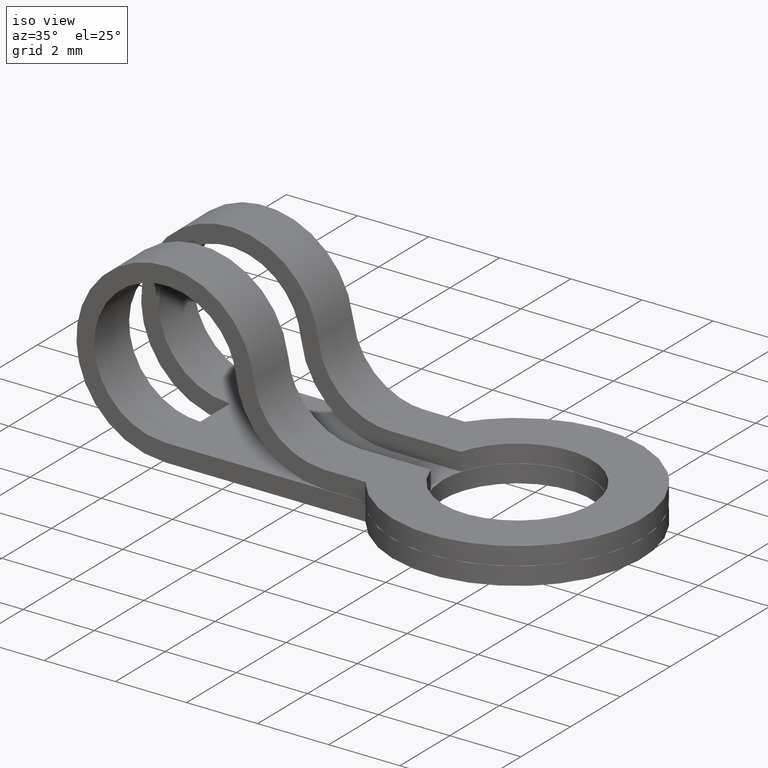
[diagram: clean part render]
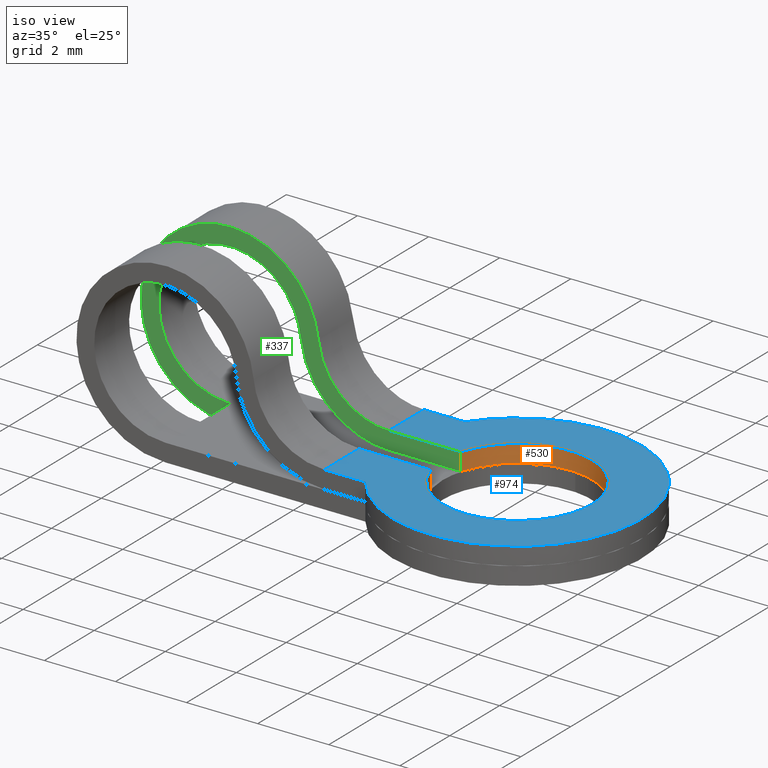
[diagram: same view with three faces highlighted in distinct colors, each labeled with its STEP entity id]
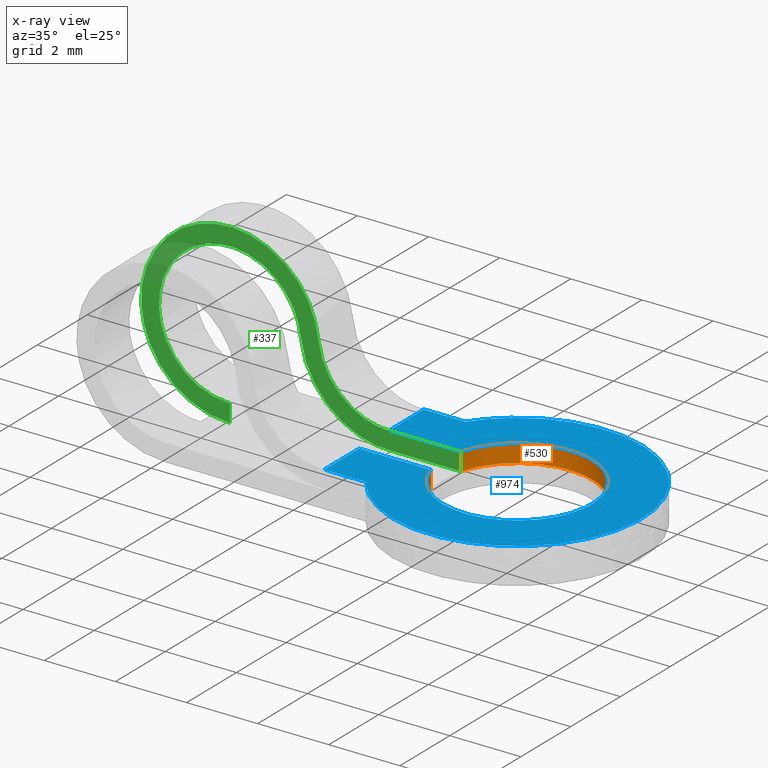
[diagram: x-ray of the same camera — body ghosted, the three highlighted faces saturated]
A machine part, iso view with three faces highlighted in distinct colors.
The next image is the same camera in x-ray (body ghosted, the three faces saturated) — at least one of them is partly hidden behind the body in this view.
Their STEP definitions:

[orange] entity #530 — the highlighted face is a freeform B-spline surface patch.
#282=CARTESIAN_POINT('',(6.887538820250209,0.600000000000045,-1.990000000000045));
#283=VERTEX_POINT('',#282);
#289=CARTESIAN_POINT('',(6.887538820250209,0.600000000000045,-1.490000000000000));
#290=VERTEX_POINT('',#289);
#291=CARTESIAN_POINT('',(6.887538820250209,0.600000000000045,-1.990000000000045));
#292=CARTESIAN_POINT('',(6.887538820250209,0.600000000000045,-1.490000000000000));
#293=QUASI_UNIFORM_CURVE('',1,(#291,#292),.UNSPECIFIED.,.F.,.U.);
#294=EDGE_CURVE('',#283,#290,#293,.T.);
#406=CARTESIAN_POINT('',(6.887538820250209,-0.600000000000045,-1.490000000000000));
#407=VERTEX_POINT('',#406);
#413=CARTESIAN_POINT('',(6.887538820250209,-0.600000000000045,-1.990000000000045));
#414=VERTEX_POINT('',#413);
#415=CARTESIAN_POINT('',(6.887538820250209,-0.600000000000045,-1.490000000000000));
#416=CARTESIAN_POINT('',(6.887538820250209,-0.600000000000045,-1.990000000000045));
#417=QUASI_UNIFORM_CURVE('',1,(#415,#416),.UNSPECIFIED.,.F.,.U.);
#418=EDGE_CURVE('',#407,#414,#417,.T.);
#462=CARTESIAN_POINT('',(6.870595630112311,-0.539923979353339,-1.477499999999999));
#463=CARTESIAN_POINT('',(6.870595630112311,-0.539923979353339,-2.002812500000046));
#464=CARTESIAN_POINT('',(7.350384024012223,-2.343297603114315,-1.477499999999999));
#465=CARTESIAN_POINT('',(7.350384024012223,-2.343297603114315,-2.002812500000046));
#466=CARTESIAN_POINT('',(9.197650565023221,-2.078798725500222,-1.477499999999999));
#467=CARTESIAN_POINT('',(9.197650565023221,-2.078798725500222,-2.002812500000046));
#468=CARTESIAN_POINT('',(11.044917106034218,-1.814299847886129,-1.477499999999999));
#469=CARTESIAN_POINT('',(11.044917106034218,-1.814299847886129,-2.002812500000046));
#470=CARTESIAN_POINT('',(10.999374515417060,0.051250795285406,-1.477499999999999));
#471=CARTESIAN_POINT('',(10.999374515417060,0.051250795285406,-2.002812500000046));
#472=CARTESIAN_POINT('',(10.953831924799895,1.916801438456940,-1.477499999999999));
#473=CARTESIAN_POINT('',(10.953831924799895,1.916801438456940,-2.002812500000046));
#474=CARTESIAN_POINT('',(9.095859468639640,2.090846495691203,-1.477499999999999));
#475=CARTESIAN_POINT('',(9.095859468639640,2.090846495691203,-2.002812500000046));
#476=CARTESIAN_POINT('',(7.237887012479384,2.264891552925466,-1.477499999999999));
#477=CARTESIAN_POINT('',(7.237887012479384,2.264891552925466,-2.002812500000046));
#478=CARTESIAN_POINT('',(6.846667109005701,0.440254515889363,-1.477499999999999));
#479=CARTESIAN_POINT('',(6.846667109005701,0.440254515889363,-2.002812500000046));
#487=(BOUNDED_SURFACE()B_SPLINE_SURFACE(1,2,((#462,#464,#466,#468,#470,#472,#474,#476,#478),(#463,#465,#467,#469,#471,#473,#475,#477,#479)),.UNSPECIFIED.,.F.,.F.,.U.)B_SPLINE_SURFACE_WITH_KNOTS((2,2),(3,2,2,2,3),(0.0,1.0),(0.0,3.192957877615587,6.385915755231173,9.578873632846760,12.771831510462350),.UNSPECIFIED.)GEOMETRIC_REPRESENTATION_ITEM()RATIONAL_B_SPLINE_SURFACE(((1.0,0.747508326862597,1.0,0.747508326862597,1.0,0.747508326862597,1.0,0.747508326862597,1.0),(1.0,0.747508326862597,1.0,0.747508326862597,1.0,0.747508326862597,1.0,0.747508326862597,1.0)))REPRESENTATION_ITEM('')SURFACE());
#488=ORIENTED_EDGE('',*,*,#294,.F.);
#489=CARTESIAN_POINT('',(6.887538820250203,0.600000000000047,-1.990000000000045));
#490=CARTESIAN_POINT('',(7.406352245028294,2.340153128164829,-1.990000000000045));
#491=CARTESIAN_POINT('',(9.203176122514147,2.078000057444005,-1.990000000000045));
#492=CARTESIAN_POINT('',(11.000000000000002,1.815846986723179,-1.990000000000045));
#493=CARTESIAN_POINT('',(11.0,0.0,-1.990000000000045));
#494=CARTESIAN_POINT('',(11.000000000000002,-1.815846986723179,-1.990000000000045));
#495=CARTESIAN_POINT('',(9.203176122514149,-2.078000057444005,-1.990000000000045));
#496=CARTESIAN_POINT('',(7.406352245028296,-2.340153128164829,-1.990000000000045));
#497=CARTESIAN_POINT('',(6.887538820250203,-0.600000000000048,-1.990000000000045));
#505=(BOUNDED_CURVE()B_SPLINE_CURVE(2,(#489,#490,#491,#492,#493,#494,#495,#496,#497),.UNSPECIFIED.,.F.,.U.)B_SPLINE_CURVE_WITH_KNOTS((3,2,2,2,3),(0.0,0.250000000000000,0.500000000000000,0.750000000000000,1.0),.UNSPECIFIED.)CURVE()GEOMETRIC_REPRESENTATION_ITEM()RATIONAL_B_SPLINE_CURVE((1.0,0.756428972921316,1.0,0.756428972921316,1.0,0.756428972921316,1.0,0.756428972921316,1.0))REPRESENTATION_ITEM(''));
#506=EDGE_CURVE('',#283,#414,#505,.T.);
#507=ORIENTED_EDGE('',*,*,#506,.T.);
#508=ORIENTED_EDGE('',*,*,#418,.F.);
#509=CARTESIAN_POINT('',(6.887538820250203,-0.600000000000047,-1.490000000000000));
#510=CARTESIAN_POINT('',(7.406352245028296,-2.340153128164829,-1.490000000000000));
#511=CARTESIAN_POINT('',(9.203176122514147,-2.078000057444005,-1.490000000000000));
#512=CARTESIAN_POINT('',(11.0,-1.815846986723179,-1.490000000000000));
#513=CARTESIAN_POINT('',(11.0,0.0,-1.490000000000000));
#514=CARTESIAN_POINT('',(11.0,1.815846986723179,-1.490000000000000));
#515=CARTESIAN_POINT('',(9.203176122514149,2.078000057444005,-1.490000000000000));
#516=CARTESIAN_POINT('',(7.406352245028296,2.340153128164831,-1.490000000000000));
#517=CARTESIAN_POINT('',(6.887538820250203,0.600000000000048,-1.490000000000000));
#525=(BOUNDED_CURVE()B_SPLINE_CURVE(2,(#509,#510,#511,#512,#513,#514,#515,#516,#517),.UNSPECIFIED.,.F.,.U.)B_SPLINE_CURVE_WITH_KNOTS((3,2,2,2,3),(0.0,0.250000000000000,0.500000000000000,0.750000000000000,1.0),.UNSPECIFIED.)CURVE()GEOMETRIC_REPRESENTATION_ITEM()RATIONAL_B_SPLINE_CURVE((1.0,0.756428972921316,1.0,0.756428972921316,1.0,0.756428972921316,1.0,0.756428972921316,1.0))REPRESENTATION_ITEM(''));
#526=EDGE_CURVE('',#407,#290,#525,.T.);
#527=ORIENTED_EDGE('',*,*,#526,.T.);
#528=EDGE_LOOP('',(#488,#507,#508,#527));
#529=FACE_OUTER_BOUND('',#528,.T.);
#530=ADVANCED_FACE('',(#529),#487,.F.);

[blue] entity #974 — the highlighted face is a freeform B-spline surface patch.
#289=CARTESIAN_POINT('',(6.887538820250209,0.600000000000045,-1.490000000000000));
#290=VERTEX_POINT('',#289);
#296=CARTESIAN_POINT('',(4.871006598071630,0.600000000000045,-1.490000000000000));
#297=VERTEX_POINT('',#296);
#298=CARTESIAN_POINT('',(4.871006598071630,0.600000000000045,-1.490000000000000));
#299=CARTESIAN_POINT('',(6.887538820250209,0.600000000000045,-1.490000000000000));
#300=QUASI_UNIFORM_CURVE('',1,(#298,#299),.UNSPECIFIED.,.F.,.U.);
#301=EDGE_CURVE('',#297,#290,#300,.T.);
#391=CARTESIAN_POINT('',(4.871006598071630,-0.600000000000045,-1.490000000000000));
#392=VERTEX_POINT('',#391);
#406=CARTESIAN_POINT('',(6.887538820250209,-0.600000000000045,-1.490000000000000));
#407=VERTEX_POINT('',#406);
#408=CARTESIAN_POINT('',(6.887538820250209,-0.600000000000045,-1.490000000000000));
#409=CARTESIAN_POINT('',(4.871006598071630,-0.600000000000045,-1.490000000000000));
#410=QUASI_UNIFORM_CURVE('',1,(#408,#409),.UNSPECIFIED.,.F.,.U.);
#411=EDGE_CURVE('',#407,#392,#410,.T.);
#509=CARTESIAN_POINT('',(6.887538820250203,-0.600000000000047,-1.490000000000000));
#510=CARTESIAN_POINT('',(7.406352245028296,-2.340153128164829,-1.490000000000000));
#511=CARTESIAN_POINT('',(9.203176122514147,-2.078000057444005,-1.490000000000000));
#512=CARTESIAN_POINT('',(11.0,-1.815846986723179,-1.490000000000000));
#513=CARTESIAN_POINT('',(11.0,0.0,-1.490000000000000));
#514=CARTESIAN_POINT('',(11.0,1.815846986723179,-1.490000000000000));
#515=CARTESIAN_POINT('',(9.203176122514149,2.078000057444005,-1.490000000000000));
#516=CARTESIAN_POINT('',(7.406352245028296,2.340153128164831,-1.490000000000000));
#517=CARTESIAN_POINT('',(6.887538820250203,0.600000000000048,-1.490000000000000));
#525=(BOUNDED_CURVE()B_SPLINE_CURVE(2,(#509,#510,#511,#512,#513,#514,#515,#516,#517),.UNSPECIFIED.,.F.,.U.)B_SPLINE_CURVE_WITH_KNOTS((3,2,2,2,3),(0.0,0.250000000000000,0.500000000000000,0.750000000000000,1.0),.UNSPECIFIED.)CURVE()GEOMETRIC_REPRESENTATION_ITEM()RATIONAL_B_SPLINE_CURVE((1.0,0.756428972921316,1.0,0.756428972921316,1.0,0.756428972921316,1.0,0.756428972921316,1.0))REPRESENTATION_ITEM(''));
#526=EDGE_CURVE('',#407,#290,#525,.T.);
#545=CARTESIAN_POINT('',(4.871006598071630,-2.000000000000225,-1.490000000000000));
#546=VERTEX_POINT('',#545);
#547=CARTESIAN_POINT('',(4.871006598071630,-0.600000000000045,-1.490000000000000));
#548=CARTESIAN_POINT('',(4.871006598071630,-2.000000000000225,-1.490000000000000));
#549=QUASI_UNIFORM_CURVE('',1,(#547,#548),.UNSPECIFIED.,.F.,.U.);
#550=EDGE_CURVE('',#392,#546,#549,.T.);
#679=CARTESIAN_POINT('',(6.027718691425030,-2.000000000000225,-1.490000000000000));
#680=VERTEX_POINT('',#679);
#681=CARTESIAN_POINT('',(6.027718691425051,2.000000021102730,-1.490000000000000));
#682=VERTEX_POINT('',#681);
#683=CARTESIAN_POINT('',(6.027718691425030,-2.000000000000225,-1.490000000000000));
#684=CARTESIAN_POINT('',(7.496194352325744,-4.108937617553671,-1.490000000000001));
#685=CARTESIAN_POINT('',(9.948097172984022,-3.339385020626239,-1.490000000000000));
#686=CARTESIAN_POINT('',(12.399999993642302,-2.569832423698805,-1.490000000000001));
#687=CARTESIAN_POINT('',(12.400000000000000,-8.658909E-009,-1.490000000000000));
#688=CARTESIAN_POINT('',(12.400000006357699,2.569832406380988,-1.490000000000001));
#689=CARTESIAN_POINT('',(9.948097189507125,3.339385015440308,-1.490000000000000));
#690=CARTESIAN_POINT('',(7.496194372656553,4.108937624499627,-1.490000000000001));
#691=CARTESIAN_POINT('',(6.027718691425044,2.000000021102734,-1.490000000000000));
#699=(BOUNDED_CURVE()B_SPLINE_CURVE(2,(#683,#684,#685,#686,#687,#688,#689,#690,#691),.UNSPECIFIED.,.F.,.U.)B_SPLINE_CURVE_WITH_KNOTS((3,2,2,2,3),(0.0,0.250000000000000,0.500000000000000,0.750000000000000,1.0),.UNSPECIFIED.)CURVE()GEOMETRIC_REPRESENTATION_ITEM()RATIONAL_B_SPLINE_CURVE((1.0,0.806057174615652,1.0,0.806057174615652,1.0,0.806057174615652,1.0,0.806057174615652,1.0))REPRESENTATION_ITEM(''));
#700=EDGE_CURVE('',#680,#682,#699,.T.);
#798=CARTESIAN_POINT('',(6.027718691425030,-2.000000000000225,-1.490000000000000));
#799=CARTESIAN_POINT('',(4.871006598071630,-2.000000000000225,-1.490000000000000));
#800=QUASI_UNIFORM_CURVE('',1,(#798,#799),.UNSPECIFIED.,.F.,.U.);
#801=EDGE_CURVE('',#680,#546,#800,.T.);
#850=CARTESIAN_POINT('',(4.871006598071630,2.0,-1.490000000000000));
#851=VERTEX_POINT('',#850);
#865=CARTESIAN_POINT('',(4.871006598071630,2.0,-1.490000000000000));
#866=CARTESIAN_POINT('',(6.027718691425051,2.000000021102730,-1.490000000000000));
#867=QUASI_UNIFORM_CURVE('',1,(#865,#866),.UNSPECIFIED.,.F.,.U.);
#868=EDGE_CURVE('',#851,#682,#867,.T.);
#955=CARTESIAN_POINT('',(12.776072852449641,-3.844686095711001,-1.490000000000000));
#956=CARTESIAN_POINT('',(4.494933207106402,-3.844686095711001,-1.490000000000000));
#957=CARTESIAN_POINT('',(12.776072852449641,3.844685990668262,-1.490000000000000));
#958=CARTESIAN_POINT('',(4.494933207106402,3.844685990668262,-1.490000000000000));
#959=B_SPLINE_SURFACE_WITH_KNOTS('',1,1,((#955,#957),(#956,#958)),.UNSPECIFIED.,.F.,.F.,.U.,(2,2),(2,2),(0.0,8.281139645343242),(0.0,7.689372086379263),.UNSPECIFIED.);
#960=CARTESIAN_POINT('',(4.871006598071630,2.0,-1.490000000000000));
#961=CARTESIAN_POINT('',(4.871006598071630,0.600000000000045,-1.490000000000000));
#962=QUASI_UNIFORM_CURVE('',1,(#960,#961),.UNSPECIFIED.,.F.,.U.);
#963=EDGE_CURVE('',#851,#297,#962,.T.);
#964=ORIENTED_EDGE('',*,*,#963,.T.);
#965=ORIENTED_EDGE('',*,*,#301,.T.);
#966=ORIENTED_EDGE('',*,*,#526,.F.);
#967=ORIENTED_EDGE('',*,*,#411,.T.);
#968=ORIENTED_EDGE('',*,*,#550,.T.);
#969=ORIENTED_EDGE('',*,*,#801,.F.);
#970=ORIENTED_EDGE('',*,*,#700,.T.);
#971=ORIENTED_EDGE('',*,*,#868,.F.);
#972=EDGE_LOOP('',(#964,#965,#966,#967,#968,#969,#970,#971));
#973=FACE_OUTER_BOUND('',#972,.T.);
#974=ADVANCED_FACE('',(#973),#959,.F.);

[green] entity #337 — the highlighted face is a freeform B-spline surface patch.
#234=CARTESIAN_POINT('',(-2.547046747597062,0.600000000000009,2.742229161025067));
#235=CARTESIAN_POINT('',(-2.547046747597062,0.600000000000009,-2.749392330600836));
#236=CARTESIAN_POINT('',(7.336377131361049,0.600000000000009,2.742229161025067));
#237=CARTESIAN_POINT('',(7.336377131361049,0.600000000000009,-2.749392330600836));
#238=B_SPLINE_SURFACE_WITH_KNOTS('',1,1,((#234,#236),(#235,#237)),.UNSPECIFIED.,.F.,.F.,.U.,(2,2),(2,2),(0.0,5.491621491625903),(0.0,9.883423878958110),.UNSPECIFIED.);
#239=CARTESIAN_POINT('',(0.400000000000006,0.600000000000045,-2.0));
#240=VERTEX_POINT('',#239);
#241=CARTESIAN_POINT('',(0.400000000000005,0.600000000000045,-2.500000000000000));
#242=VERTEX_POINT('',#241);
#243=CARTESIAN_POINT('',(0.400000000000006,0.600000000000045,-2.0));
#244=CARTESIAN_POINT('',(0.400000000000005,0.600000000000045,-2.500000000000000));
#245=QUASI_UNIFORM_CURVE('',1,(#243,#244),.UNSPECIFIED.,.F.,.U.);
#246=EDGE_CURVE('',#240,#242,#245,.T.);
#247=ORIENTED_EDGE('',*,*,#246,.F.);
#248=CARTESIAN_POINT('',(2.387114043587395,0.600000000000045,0.226666666666668));
#249=VERTEX_POINT('',#248);
#250=CARTESIAN_POINT('',(0.400000000000006,0.600000000000045,-2.0));
#251=CARTESIAN_POINT('',(-1.525679730313454,0.600000000000045,-2.000000000000000));
#252=CARTESIAN_POINT('',(-1.598566858128569,0.600000000000045,-0.075700155812775));
#253=CARTESIAN_POINT('',(-1.671453985943684,0.600000000000045,1.848599688374450));
#254=CARTESIAN_POINT('',(0.248708177437425,0.600000000000045,1.994269486409921));
#255=CARTESIAN_POINT('',(2.168870340818534,0.600000000000045,2.139939284445393));
#256=CARTESIAN_POINT('',(2.387114043587394,0.600000000000045,0.226666666666668));
#264=(BOUNDED_CURVE()B_SPLINE_CURVE(2,(#250,#251,#252,#253,#254,#255,#256),.UNSPECIFIED.,.F.,.U.)B_SPLINE_CURVE_WITH_KNOTS((3,2,2,3),(0.0,0.333333333333333,0.666666666666667,1.0),.UNSPECIFIED.)CURVE()GEOMETRIC_REPRESENTATION_ITEM()RATIONAL_B_SPLINE_CURVE((1.0,0.720364518110931,1.0,0.720364518110931,1.0,0.720364518110931,1.0))REPRESENTATION_ITEM(''));
#265=EDGE_CURVE('',#240,#249,#264,.T.);
#266=ORIENTED_EDGE('',*,*,#265,.T.);
#267=CARTESIAN_POINT('',(4.871006598071630,0.600000000000045,-1.990000000000000));
#268=VERTEX_POINT('',#267);
#269=CARTESIAN_POINT('',(2.387114043587394,0.600000000000045,0.226666666666668));
#270=CARTESIAN_POINT('',(2.639965381469022,0.600000000000045,-1.990000000000000));
#271=CARTESIAN_POINT('',(4.871006598071630,0.600000000000045,-1.990000000000000));
#279=(BOUNDED_CURVE()B_SPLINE_CURVE(2,(#269,#270,#271),.UNSPECIFIED.,.F.,.U.)CURVE()GEOMETRIC_REPRESENTATION_ITEM()QUASI_UNIFORM_CURVE()RATIONAL_B_SPLINE_CURVE((1.0,0.746100976186646,1.0))REPRESENTATION_ITEM(''));
#280=EDGE_CURVE('',#249,#268,#279,.T.);
#281=ORIENTED_EDGE('',*,*,#280,.T.);
#282=CARTESIAN_POINT('',(6.887538820250209,0.600000000000045,-1.990000000000045));
#283=VERTEX_POINT('',#282);
#284=CARTESIAN_POINT('',(6.887538820250209,0.600000000000045,-1.990000000000045));
#285=CARTESIAN_POINT('',(4.871006598071630,0.600000000000045,-1.990000000000000));
#286=QUASI_UNIFORM_CURVE('',1,(#284,#285),.UNSPECIFIED.,.F.,.U.);
#287=EDGE_CURVE('',#283,#268,#286,.T.);
#288=ORIENTED_EDGE('',*,*,#287,.F.);
#289=CARTESIAN_POINT('',(6.887538820250209,0.600000000000045,-1.490000000000000));
#290=VERTEX_POINT('',#289);
#291=CARTESIAN_POINT('',(6.887538820250209,0.600000000000045,-1.990000000000045));
#292=CARTESIAN_POINT('',(6.887538820250209,0.600000000000045,-1.490000000000000));
#293=QUASI_UNIFORM_CURVE('',1,(#291,#292),.UNSPECIFIED.,.F.,.U.);
#294=EDGE_CURVE('',#283,#290,#293,.T.);
#295=ORIENTED_EDGE('',*,*,#294,.T.);
#296=CARTESIAN_POINT('',(4.871006598071630,0.600000000000045,-1.490000000000000));
#297=VERTEX_POINT('',#296);
#298=CARTESIAN_POINT('',(4.871006598071630,0.600000000000045,-1.490000000000000));
#299=CARTESIAN_POINT('',(6.887538820250209,0.600000000000045,-1.490000000000000));
#300=QUASI_UNIFORM_CURVE('',1,(#298,#299),.UNSPECIFIED.,.F.,.U.);
#301=EDGE_CURVE('',#297,#290,#300,.T.);
#302=ORIENTED_EDGE('',*,*,#301,.F.);
#303=CARTESIAN_POINT('',(2.883892554484240,0.600000000000045,0.283333333333334));
#304=VERTEX_POINT('',#303);
#305=CARTESIAN_POINT('',(2.883892554484242,0.600000000000045,0.283333333333334));
#306=CARTESIAN_POINT('',(3.086173624789545,0.600000000000045,-1.490000000000000));
#307=CARTESIAN_POINT('',(4.871006598071630,0.600000000000045,-1.490000000000000));
#315=(BOUNDED_CURVE()B_SPLINE_CURVE(2,(#305,#306,#307),.UNSPECIFIED.,.F.,.U.)CURVE()GEOMETRIC_REPRESENTATION_ITEM()QUASI_UNIFORM_CURVE()RATIONAL_B_SPLINE_CURVE((1.0,0.746100976186646,1.0))REPRESENTATION_ITEM(''));
#316=EDGE_CURVE('',#304,#297,#315,.T.);
#317=ORIENTED_EDGE('',*,*,#316,.F.);
#318=CARTESIAN_POINT('',(0.400000000000006,0.600000000000045,-2.500000000000000));
#319=CARTESIAN_POINT('',(-2.007099662891819,0.600000000000045,-2.500000000000000));
#320=CARTESIAN_POINT('',(-2.098208572660713,0.600000000000045,-0.094625194765969));
#321=CARTESIAN_POINT('',(-2.189317482429608,0.600000000000045,2.310749610468064));
#322=CARTESIAN_POINT('',(0.210885221796779,0.600000000000045,2.492836858012402));
#323=CARTESIAN_POINT('',(2.611087926023166,0.600000000000045,2.674924105556741));
#324=CARTESIAN_POINT('',(2.883892554484241,0.600000000000045,0.283333333333335));
#332=(BOUNDED_CURVE()B_SPLINE_CURVE(2,(#318,#319,#320,#321,#322,#323,#324),.UNSPECIFIED.,.F.,.U.)B_SPLINE_CURVE_WITH_KNOTS((3,2,2,3),(0.0,0.333333333333333,0.666666666666667,1.0),.UNSPECIFIED.)CURVE()GEOMETRIC_REPRESENTATION_ITEM()RATIONAL_B_SPLINE_CURVE((1.0,0.720364518110931,1.0,0.720364518110931,1.0,0.720364518110931,1.0))REPRESENTATION_ITEM(''));
#333=EDGE_CURVE('',#242,#304,#332,.T.);
#334=ORIENTED_EDGE('',*,*,#333,.F.);
#335=EDGE_LOOP('',(#247,#266,#281,#288,#295,#302,#317,#334));
#336=FACE_OUTER_BOUND('',#335,.T.);
#337=ADVANCED_FACE('',(#336),#238,.T.);